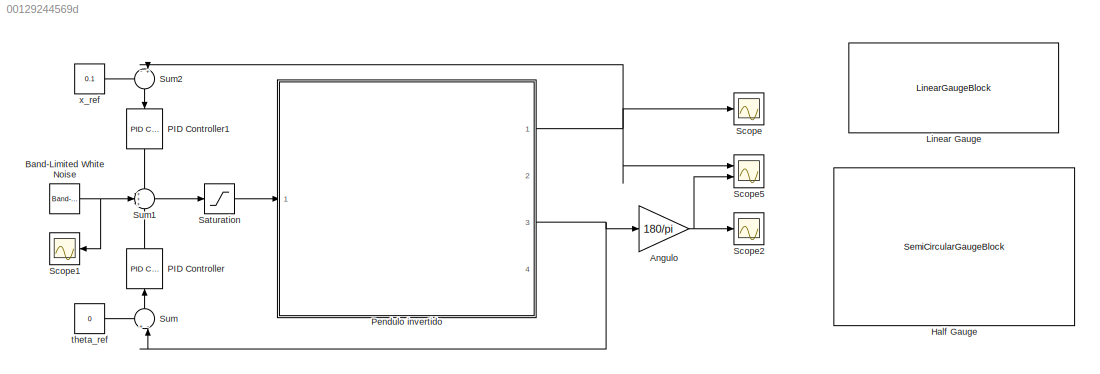
MODEL slx_00129244569d
KIND model
CONFIG AbsTol = auto
CONFIG EnableMultiTasking = off
CONFIG FixedStep = auto
CONFIG MaxStep = auto
CONFIG MinStep = auto
CONFIG RelTol = 1e-3
CONFIG SampleTimeConstraint = Unconstrained
CONFIG SolverName = VariableStepAuto
CONFIG StartTime = 0.0
CONFIG StopTime = 120.0
BLOCK [Gain] Angulo
  Gain = 180/pi
BLOCK [Reference] Band-Limited White Noise  REF=simulink/Sources/Band-Limited
White Noise
  Ports = [0, 1]
  SourceBlock = simulink/Sources/Band-Limited\nWhite Noise
  SourceProductBaseCode = SL
  SourceType = Band-Limited White Noise.
BLOCK [SemiCircularGaugeBlock] Half Gauge
  ScaleMax = 0.2
  ScaleMin = -0.2
BLOCK [LinearGaugeBlock] Linear Gauge
  ScaleMax = 0.2
  ScaleMin = -0.01
BLOCK [Reference] PID Controller  REF=pid_lib/PID Controller
  NameLocation = right
  Ports = [1, 1]
  SourceBlock = pid_lib/PID Controller
  SourceProductBaseCode = SL
  SourceType = PID 1dof
BLOCK [Reference] PID Controller1  REF=pid_lib/PID Controller
  NameLocation = left
  Ports = [1, 1]
  SourceBlock = pid_lib/PID Controller
  SourceProductBaseCode = SL
  SourceType = PID 1dof
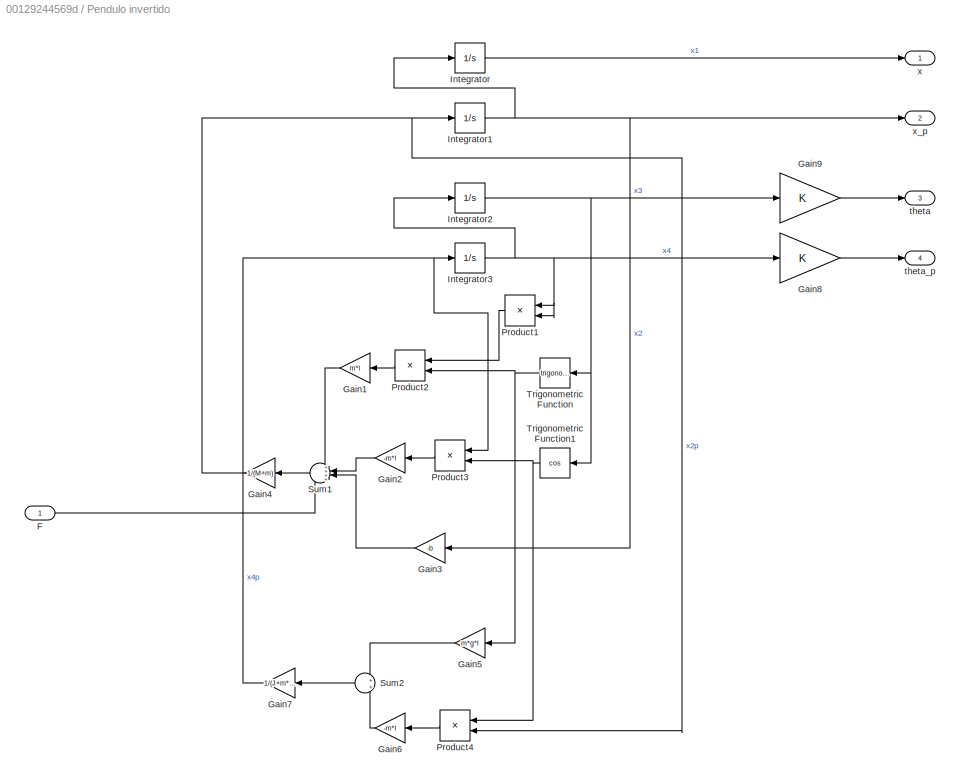
BLOCK [SubSystem] Pendulo invertido
  Ports = [1, 4]
  RequestExecContextInheritance = off
BLOCK [Inport] Pendulo invertido/F
BLOCK [Gain] Pendulo invertido/Gain1
  Gain = m*l
  NameLocation = top
BLOCK [Gain] Pendulo invertido/Gain2
  Gain = -m*l
  NameLocation = top
BLOCK [Gain] Pendulo invertido/Gain3
  Gain = -b
  NameLocation = top
BLOCK [Gain] Pendulo invertido/Gain4
  Gain = 1/(M+m)
  NameLocation = top
BLOCK [Gain] Pendulo invertido/Gain5
  Gain = m*g*l
  NameLocation = top
BLOCK [Gain] Pendulo invertido/Gain6
  Gain = -m*l
  NameLocation = top
BLOCK [Gain] Pendulo invertido/Gain7
  Gain = 1/(J+m*l*l)
  NameLocation = top
BLOCK [Gain] Pendulo invertido/Gain8
BLOCK [Gain] Pendulo invertido/Gain9
BLOCK [Integrator] Pendulo invertido/Integrator
  NameLocation = top
  Ports = [1, 1]
BLOCK [Integrator] Pendulo invertido/Integrator1
  Ports = [1, 1]
BLOCK [Integrator] Pendulo invertido/Integrator2
  NameLocation = top
  Ports = [1, 1]
BLOCK [Integrator] Pendulo invertido/Integrator3
  Ports = [1, 1]
BLOCK [Product] Pendulo invertido/Product1
  NameLocation = top
  Ports = [2, 1]
BLOCK [Product] Pendulo invertido/Product2
  NameLocation = top
  Ports = [2, 1]
BLOCK [Product] Pendulo invertido/Product3
  NameLocation = top
  Ports = [2, 1]
BLOCK [Product] Pendulo invertido/Product4
  NameLocation = top
  Ports = [2, 1]
BLOCK [Sum] Pendulo invertido/Sum1
  Inputs = ++++
  NameLocation = top
  Ports = [4, 1]
BLOCK [Sum] Pendulo invertido/Sum2
  NameLocation = top
  Ports = [2, 1]
BLOCK [Trigonometry] Pendulo invertido/Trigonometric Function
  NameLocation = top
  Ports = [1, 1]
BLOCK [Trigonometry] Pendulo invertido/Trigonometric Function1
  NameLocation = top
  Operator = cos
  Ports = [1, 1]
BLOCK [Outport] Pendulo invertido/theta
  Port = 3
BLOCK [Outport] Pendulo invertido/theta_p
  Port = 4
BLOCK [Outport] Pendulo invertido/x
BLOCK [Outport] Pendulo invertido/x_p
  Port = 2
BLOCK [Saturate] Saturation
BLOCK [Scope] Scope
  Floating = off
  NumInputPorts = 1
  Ports = [1]
  ScopeSpecificationString = Simulink.scopes.TimeScopeBlockCfg('CurrentConfiguration', extmgr.ConfigurationSet(extmgr.Configuration('Core','General UI',true),extmgr.Configuration('Core','Source UI',true),extmgr.Configuration('Sources','WiredSimulink',true),extmgr.Configuration('Visuals','Time Domain',true,'SerializedDisplays',{struct('MinYLimReal','-0.02104','MaxYLimReal','0.18614','YLabelReal','','MinYLimMag','0.00000','MaxY...<+1368ch>
BLOCK [Scope] Scope1
  Floating = off
  NameLocation = top
  NumInputPorts = 1
  Ports = [1]
  ScopeSpecificationString = Simulink.scopes.TimeScopeBlockCfg('CurrentConfiguration', extmgr.ConfigurationSet(extmgr.Configuration('Core','General UI',true),extmgr.Configuration('Core','Source UI',true),extmgr.Configuration('Sources','WiredSimulink',true,'DataLoggingVariableName','ScopeData1'),extmgr.Configuration('Visuals','Time Domain',true,'SerializedDisplays',{struct('MinYLimReal','-0.20343','MaxYLimReal','0.21858','YLab...<+1436ch>
BLOCK [Scope] Scope2
  Floating = off
  NumInputPorts = 1
  Ports = [1]
  ScopeSpecificationString = Simulink.scopes.TimeScopeBlockCfg('CurrentConfiguration', extmgr.ConfigurationSet(extmgr.Configuration('Core','General UI',true),extmgr.Configuration('Core','Source UI',true),extmgr.Configuration('Sources','WiredSimulink',true,'DataLoggingVariableName','ScopeData2'),extmgr.Configuration('Visuals','Time Domain',true,'SerializedDisplays',{struct('MinYLimReal','-0.15551','MaxYLimReal','0.17627','YLab...<+1393ch>
BLOCK [Scope] Scope5
  Floating = off
  NumInputPorts = 2
  Ports = [2]
  ScopeSpecificationString = Simulink.scopes.TimeScopeBlockCfg('CurrentConfiguration', extmgr.ConfigurationSet(extmgr.Configuration('Core','General UI',true),extmgr.Configuration('Core','Source UI',true),extmgr.Configuration('Sources','WiredSimulink',true,'DataLoggingVariableName','ScopeData1'),extmgr.Configuration('Visuals','Time Domain',true,'SerializedDisplays',{struct('MinYLimReal','-0.15831','MaxYLimReal','0.20139','YLab...<+1450ch>
BLOCK [Sum] Sum
  Inputs = +-|
  NameLocation = right
  Ports = [2, 1]
BLOCK [Sum] Sum1
  Inputs = +++
  Ports = [3, 1]
BLOCK [Sum] Sum2
  Inputs = -+|
  NameLocation = left
  Ports = [2, 1]
BLOCK [Constant] theta_ref
  Value = 0
BLOCK [Constant] x_ref
  Value = 0.1
NET Angulo:1 -> Scope2:1, Scope5:2
NET Band-Limited White Noise:1 -> Scope1:1, Sum1:2
LINE PID Controller1:1 -> Sum1:1
LINE PID Controller:1 -> Sum1:3
LINE Pendulo invertido/F:1 -> Pendulo invertido/Sum1:4
LINE Pendulo invertido/Gain1:1 -> Pendulo invertido/Sum1:1
LINE Pendulo invertido/Gain2:1 -> Pendulo invertido/Sum1:2
LINE Pendulo invertido/Gain3:1 -> Pendulo invertido/Sum1:3
NET Pendulo invertido/Gain4:1 -> Pendulo invertido/Integrator1:1, Pendulo invertido/Product4:2
LINE Pendulo invertido/Gain5:1 -> Pendulo invertido/Sum2:1
LINE Pendulo invertido/Gain6:1 -> Pendulo invertido/Sum2:2
NET Pendulo invertido/Gain7:1 -> Pendulo invertido/Integrator3:1, Pendulo invertido/Product3:1
LINE Pendulo invertido/Gain8:1 -> Pendulo invertido/theta_p:1
LINE Pendulo invertido/Gain9:1 -> Pendulo invertido/theta:1
NET Pendulo invertido/Integrator1:1 -> Pendulo invertido/Gain3:1, Pendulo invertido/Integrator:1, Pendulo invertido/x_p:1
NET Pendulo invertido/Integrator2:1 -> Pendulo invertido/Gain9:1, Pendulo invertido/Trigonometric Function1:1, Pendulo invertido/Trigonometric Function:1
NET Pendulo invertido/Integrator3:1 -> Pendulo invertido/Gain8:1, Pendulo invertido/Integrator2:1, Pendulo invertido/Product1:1, Pendulo invertido/Product1:2
LINE Pendulo invertido/Integrator:1 -> Pendulo invertido/x:1
LINE Pendulo invertido/Product1:1 -> Pendulo invertido/Product2:1
LINE Pendulo invertido/Product2:1 -> Pendulo invertido/Gain1:1
LINE Pendulo invertido/Product3:1 -> Pendulo invertido/Gain2:1
LINE Pendulo invertido/Product4:1 -> Pendulo invertido/Gain6:1
LINE Pendulo invertido/Sum1:1 -> Pendulo invertido/Gain4:1
LINE Pendulo invertido/Sum2:1 -> Pendulo invertido/Gain7:1
NET Pendulo invertido/Trigonometric Function1:1 -> Pendulo invertido/Product3:2, Pendulo invertido/Product4:1
NET Pendulo invertido/Trigonometric Function:1 -> Pendulo invertido/Gain5:1, Pendulo invertido/Product2:2
NET Pendulo invertido:1 -> Scope5:1, Scope:1, Sum2:2
NET Pendulo invertido:3 -> Angulo:1, Sum:2
LINE Saturation:1 -> Pendulo invertido:1
LINE Sum1:1 -> Saturation:1
LINE Sum2:1 -> PID Controller1:1
LINE Sum:1 -> PID Controller:1
LINE theta_ref:1 -> Sum:1
LINE x_ref:1 -> Sum2:1
note: NET lines group one-source signal fan-out (src -> all destinations, sorted); 1:1 wires keep LINE
